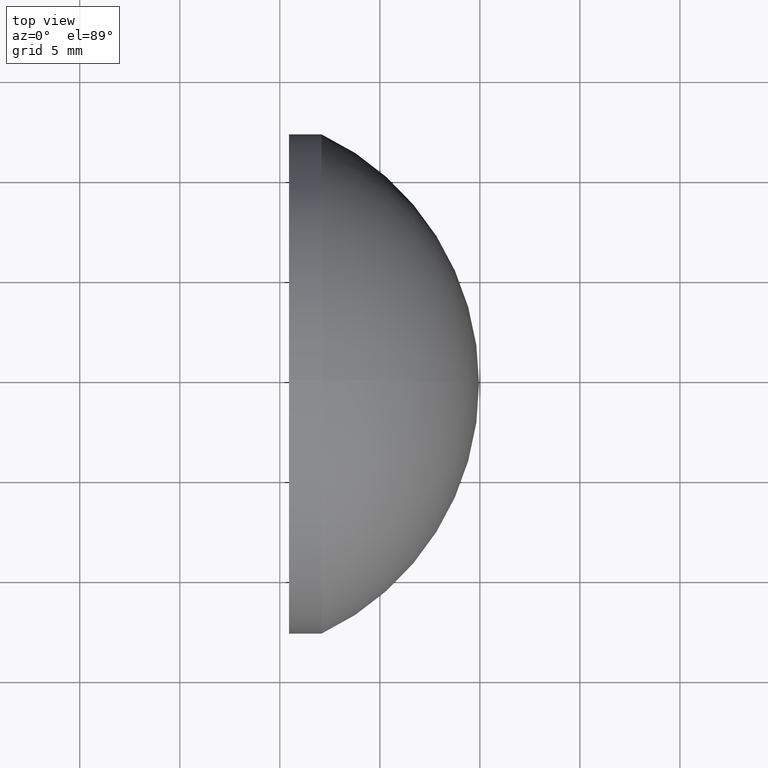
[diagram: clean part render]
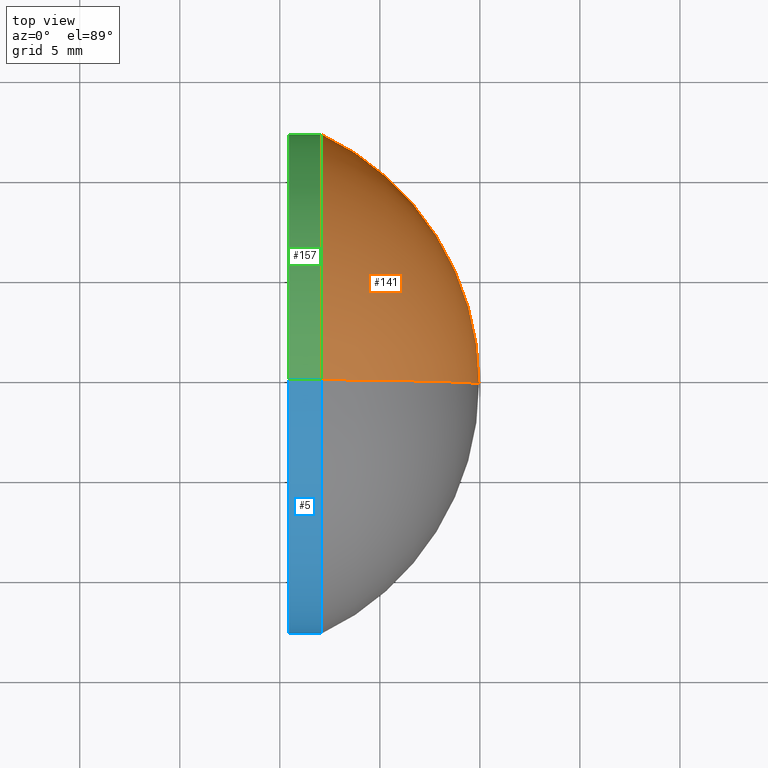
[diagram: same view with three faces highlighted in distinct colors, each labeled with its STEP entity id]
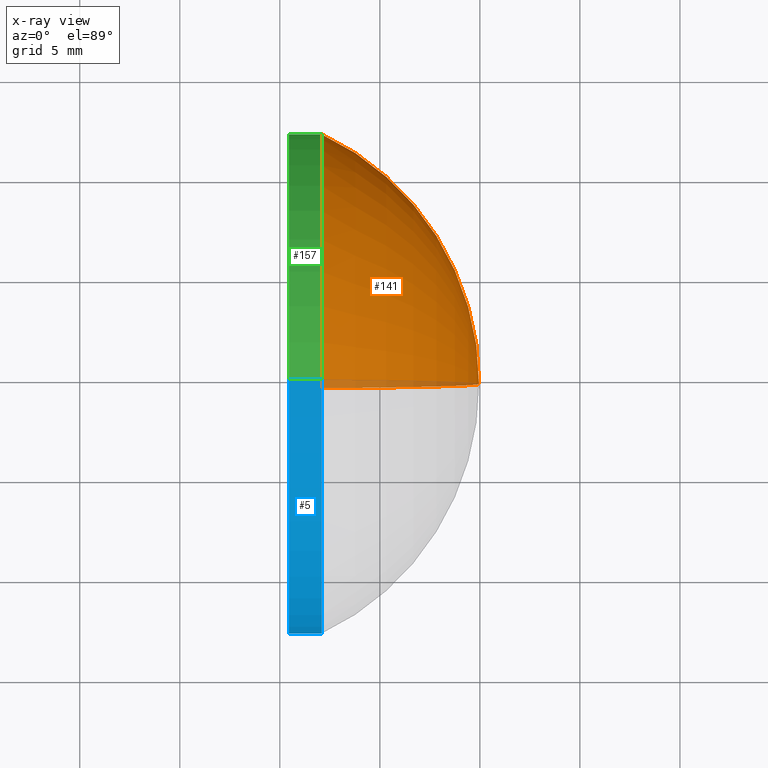
[diagram: x-ray of the same camera — body ghosted, the three highlighted faces saturated]
A machine part, top view with three faces highlighted in distinct colors.
The next image is the same camera in x-ray (body ghosted, the three faces saturated) — at least one of them is partly hidden behind the body in this view.
Their STEP definitions:

[orange] entity #141 — the highlighted toroidal blend (fillet) surface has major radius 0.0178 mm and minor (blend) radius 13.83 mm.
#1 = DIRECTION ( 'NONE',  ( -1.000000000000000000, -0.0000000000000000000, -0.0000000000000000000 ) ) ;
#2 = CIRCLE ( 'NONE', #55, 12.50000000000001100 ) ;
#14 = ORIENTED_EDGE ( 'NONE', *, *, #134, .F. ) ;
#22 = DIRECTION ( 'NONE',  ( 0.0000000000000000000, 0.0000000000000000000, 1.000000000000000000 ) ) ;
#30 = ORIENTED_EDGE ( 'NONE', *, *, #88, .F. ) ;
#32 = DIRECTION ( 'NONE',  ( 0.0000000000000000000, 0.0000000000000000000, 1.000000000000000000 ) ) ;
#35 = DIRECTION ( 'NONE',  ( 0.0000000000000000000, 0.0000000000000000000, -1.000000000000000000 ) ) ;
#44 = VERTEX_POINT ( 'NONE', #68 ) ;
#48 = EDGE_CURVE ( 'NONE', #76, #44, #65, .T. ) ;
#55 = AXIS2_PLACEMENT_3D ( 'NONE', #69, #1, #32 ) ;
#60 = CARTESIAN_POINT ( 'NONE',  ( 486.1270169559545600, 124.7029078037479600, 0.0000000000000000000 ) ) ;
#65 = CIRCLE ( 'NONE', #106, 13.82996794970070600 ) ;
#68 = CARTESIAN_POINT ( 'NONE',  ( 492.0819735120367100, 124.7029078037479600, -12.50000000000000900 ) ) ;
#69 = CARTESIAN_POINT ( 'NONE',  ( 492.0819735120367100, 124.7029078037479600, 0.0000000000000000000 ) ) ;
#70 = DIRECTION ( 'NONE',  ( -0.0000000000000000000, 1.000000000000000000, 1.224646799147353200E-016 ) ) ;
#75 = AXIS2_PLACEMENT_3D ( 'NONE', #60, #93, #22 ) ;
#76 = VERTEX_POINT ( 'NONE', #123 ) ;
#88 = EDGE_CURVE ( 'NONE', #76, #101, #165, .T. ) ;
#91 = DIRECTION ( 'NONE',  ( 0.0000000000000000000, 0.0000000000000000000, 1.000000000000000000 ) ) ;
#92 = CARTESIAN_POINT ( 'NONE',  ( 492.0819735120367100, 124.7029078037479600, 12.50000000000000900 ) ) ;
#93 = DIRECTION ( 'NONE',  ( -1.000000000000000000, -0.0000000000000000000, -0.0000000000000000000 ) ) ;
#94 = FACE_OUTER_BOUND ( 'NONE', #120, .T. ) ;
#101 = VERTEX_POINT ( 'NONE', #92 ) ;
#106 = AXIS2_PLACEMENT_3D ( 'NONE', #125, #70, #91 ) ;
#120 = EDGE_LOOP ( 'NONE', ( #30, #135, #14 ) ) ;
#123 = CARTESIAN_POINT ( 'NONE',  ( 499.9569735120367100, 124.7029078037479600, 0.0000000000000000000 ) ) ;
#124 = DIRECTION ( 'NONE',  ( 0.0000000000000000000, -1.000000000000000000, 0.0000000000000000000 ) ) ;
#125 = CARTESIAN_POINT ( 'NONE',  ( 486.1270169559545600, 124.7029078037479600, -0.01775236966823634500 ) ) ;
#133 = AXIS2_PLACEMENT_3D ( 'NONE', #140, #124, #35 ) ;
#134 = EDGE_CURVE ( 'NONE', #101, #44, #2, .T. ) ;
#135 = ORIENTED_EDGE ( 'NONE', *, *, #48, .T. ) ;
#140 = CARTESIAN_POINT ( 'NONE',  ( 486.1270169559545600, 124.7029078037479600, 0.01775236966823634500 ) ) ;
#141 = ADVANCED_FACE ( 'NONE', ( #94 ), #155, .T. ) ;
#155 = TOROIDAL_SURFACE ( 'NONE', #75, 0.01775236966823634500, 13.82996794970070600 ) ;
#165 = CIRCLE ( 'NONE', #133, 13.82996794970070600 ) ;

[blue] entity #5 — the highlighted cylindrical surface (partial cylindrical patch) has radius 12.5 mm, axis along (-1, -0, -0).
#3 = CARTESIAN_POINT ( 'NONE',  ( 492.0819735120367100, 124.7029078037479600, 0.0000000000000000000 ) ) ;
#5 = ADVANCED_FACE ( 'NONE', ( #67 ), #132, .T. ) ;
#9 = DIRECTION ( 'NONE',  ( -1.000000000000000000, -0.0000000000000000000, -0.0000000000000000000 ) ) ;
#19 = ORIENTED_EDGE ( 'NONE', *, *, #100, .F. ) ;
#21 = CARTESIAN_POINT ( 'NONE',  ( 490.4569735120367100, 124.7029078037479600, 12.50000000000001100 ) ) ;
#24 = CIRCLE ( 'NONE', #27, 12.50000000000001100 ) ;
#25 = DIRECTION ( 'NONE',  ( -1.000000000000000000, -0.0000000000000000000, -0.0000000000000000000 ) ) ;
#27 = AXIS2_PLACEMENT_3D ( 'NONE', #3, #51, #142 ) ;
#37 = LINE ( 'NONE', #61, #63 ) ;
#42 = ORIENTED_EDGE ( 'NONE', *, *, #153, .T. ) ;
#44 = VERTEX_POINT ( 'NONE', #68 ) ;
#46 = ORIENTED_EDGE ( 'NONE', *, *, #161, .T. ) ;
#50 = DIRECTION ( 'NONE',  ( 0.0000000000000000000, 0.0000000000000000000, 1.000000000000000000 ) ) ;
#51 = DIRECTION ( 'NONE',  ( -1.000000000000000000, -0.0000000000000000000, -0.0000000000000000000 ) ) ;
#54 = CIRCLE ( 'NONE', #82, 12.50000000000001100 ) ;
#61 = CARTESIAN_POINT ( 'NONE',  ( 487.9520244924638100, 124.7029078037479600, -12.50000000000001100 ) ) ;
#63 = VECTOR ( 'NONE', #9, 1000.000000000000000 ) ;
#67 = FACE_OUTER_BOUND ( 'NONE', #97, .T. ) ;
#68 = CARTESIAN_POINT ( 'NONE',  ( 492.0819735120367100, 124.7029078037479600, -12.50000000000000900 ) ) ;
#80 = CARTESIAN_POINT ( 'NONE',  ( 490.4569735120367100, 124.7029078037479600, -12.50000000000001100 ) ) ;
#82 = AXIS2_PLACEMENT_3D ( 'NONE', #117, #25, #115 ) ;
#84 = ORIENTED_EDGE ( 'NONE', *, *, #156, .F. ) ;
#92 = CARTESIAN_POINT ( 'NONE',  ( 492.0819735120367100, 124.7029078037479600, 12.50000000000000900 ) ) ;
#97 = EDGE_LOOP ( 'NONE', ( #19, #42, #46, #84 ) ) ;
#99 = CARTESIAN_POINT ( 'NONE',  ( 487.9520244924638100, 124.7029078037479600, 12.50000000000001100 ) ) ;
#100 = EDGE_CURVE ( 'NONE', #44, #105, #37, .T. ) ;
#101 = VERTEX_POINT ( 'NONE', #92 ) ;
#103 = VERTEX_POINT ( 'NONE', #21 ) ;
#105 = VERTEX_POINT ( 'NONE', #80 ) ;
#115 = DIRECTION ( 'NONE',  ( 0.0000000000000000000, 0.0000000000000000000, 1.000000000000000000 ) ) ;
#117 = CARTESIAN_POINT ( 'NONE',  ( 490.4569735120367100, 124.7029078037479600, 0.0000000000000000000 ) ) ;
#127 = LINE ( 'NONE', #99, #129 ) ;
#129 = VECTOR ( 'NONE', #144, 1000.000000000000000 ) ;
#131 = AXIS2_PLACEMENT_3D ( 'NONE', #151, #154, #50 ) ;
#132 = CYLINDRICAL_SURFACE ( 'NONE', #131, 12.50000000000001100 ) ;
#142 = DIRECTION ( 'NONE',  ( 0.0000000000000000000, 0.0000000000000000000, 1.000000000000000000 ) ) ;
#144 = DIRECTION ( 'NONE',  ( -1.000000000000000000, -0.0000000000000000000, -0.0000000000000000000 ) ) ;
#151 = CARTESIAN_POINT ( 'NONE',  ( 487.9520244924638100, 124.7029078037479600, 0.0000000000000000000 ) ) ;
#153 = EDGE_CURVE ( 'NONE', #44, #101, #24, .T. ) ;
#154 = DIRECTION ( 'NONE',  ( -1.000000000000000000, -0.0000000000000000000, -0.0000000000000000000 ) ) ;
#156 = EDGE_CURVE ( 'NONE', #105, #103, #54, .T. ) ;
#161 = EDGE_CURVE ( 'NONE', #101, #103, #127, .T. ) ;

[green] entity #157 — the highlighted cylindrical surface (partial cylindrical patch) has radius 12.5 mm, axis along (-1, -0, -0).
#1 = DIRECTION ( 'NONE',  ( -1.000000000000000000, -0.0000000000000000000, -0.0000000000000000000 ) ) ;
#2 = CIRCLE ( 'NONE', #55, 12.50000000000001100 ) ;
#6 = DIRECTION ( 'NONE',  ( 0.0000000000000000000, 0.0000000000000000000, 1.000000000000000000 ) ) ;
#7 = ORIENTED_EDGE ( 'NONE', *, *, #161, .F. ) ;
#9 = DIRECTION ( 'NONE',  ( -1.000000000000000000, -0.0000000000000000000, -0.0000000000000000000 ) ) ;
#17 = CYLINDRICAL_SURFACE ( 'NONE', #116, 12.50000000000001100 ) ;
#21 = CARTESIAN_POINT ( 'NONE',  ( 490.4569735120367100, 124.7029078037479600, 12.50000000000001100 ) ) ;
#32 = DIRECTION ( 'NONE',  ( 0.0000000000000000000, 0.0000000000000000000, 1.000000000000000000 ) ) ;
#33 = CARTESIAN_POINT ( 'NONE',  ( 490.4569735120367100, 124.7029078037479600, 0.0000000000000000000 ) ) ;
#37 = LINE ( 'NONE', #61, #63 ) ;
#44 = VERTEX_POINT ( 'NONE', #68 ) ;
#49 = DIRECTION ( 'NONE',  ( -1.000000000000000000, -0.0000000000000000000, -0.0000000000000000000 ) ) ;
#55 = AXIS2_PLACEMENT_3D ( 'NONE', #69, #1, #32 ) ;
#61 = CARTESIAN_POINT ( 'NONE',  ( 487.9520244924638100, 124.7029078037479600, -12.50000000000001100 ) ) ;
#63 = VECTOR ( 'NONE', #9, 1000.000000000000000 ) ;
#68 = CARTESIAN_POINT ( 'NONE',  ( 492.0819735120367100, 124.7029078037479600, -12.50000000000000900 ) ) ;
#69 = CARTESIAN_POINT ( 'NONE',  ( 492.0819735120367100, 124.7029078037479600, 0.0000000000000000000 ) ) ;
#74 = ORIENTED_EDGE ( 'NONE', *, *, #77, .F. ) ;
#77 = EDGE_CURVE ( 'NONE', #103, #105, #147, .T. ) ;
#79 = ORIENTED_EDGE ( 'NONE', *, *, #100, .T. ) ;
#80 = CARTESIAN_POINT ( 'NONE',  ( 490.4569735120367100, 124.7029078037479600, -12.50000000000001100 ) ) ;
#92 = CARTESIAN_POINT ( 'NONE',  ( 492.0819735120367100, 124.7029078037479600, 12.50000000000000900 ) ) ;
#99 = CARTESIAN_POINT ( 'NONE',  ( 487.9520244924638100, 124.7029078037479600, 12.50000000000001100 ) ) ;
#100 = EDGE_CURVE ( 'NONE', #44, #105, #37, .T. ) ;
#101 = VERTEX_POINT ( 'NONE', #92 ) ;
#103 = VERTEX_POINT ( 'NONE', #21 ) ;
#105 = VERTEX_POINT ( 'NONE', #80 ) ;
#116 = AXIS2_PLACEMENT_3D ( 'NONE', #166, #138, #6 ) ;
#126 = FACE_OUTER_BOUND ( 'NONE', #160, .T. ) ;
#127 = LINE ( 'NONE', #99, #129 ) ;
#129 = VECTOR ( 'NONE', #144, 1000.000000000000000 ) ;
#134 = EDGE_CURVE ( 'NONE', #101, #44, #2, .T. ) ;
#138 = DIRECTION ( 'NONE',  ( -1.000000000000000000, -0.0000000000000000000, -0.0000000000000000000 ) ) ;
#144 = DIRECTION ( 'NONE',  ( -1.000000000000000000, -0.0000000000000000000, -0.0000000000000000000 ) ) ;
#145 = ORIENTED_EDGE ( 'NONE', *, *, #134, .T. ) ;
#147 = CIRCLE ( 'NONE', #162, 12.50000000000001100 ) ;
#150 = DIRECTION ( 'NONE',  ( 0.0000000000000000000, 0.0000000000000000000, 1.000000000000000000 ) ) ;
#157 = ADVANCED_FACE ( 'NONE', ( #126 ), #17, .T. ) ;
#160 = EDGE_LOOP ( 'NONE', ( #145, #79, #74, #7 ) ) ;
#161 = EDGE_CURVE ( 'NONE', #101, #103, #127, .T. ) ;
#162 = AXIS2_PLACEMENT_3D ( 'NONE', #33, #49, #150 ) ;
#166 = CARTESIAN_POINT ( 'NONE',  ( 487.9520244924638100, 124.7029078037479600, 0.0000000000000000000 ) ) ;